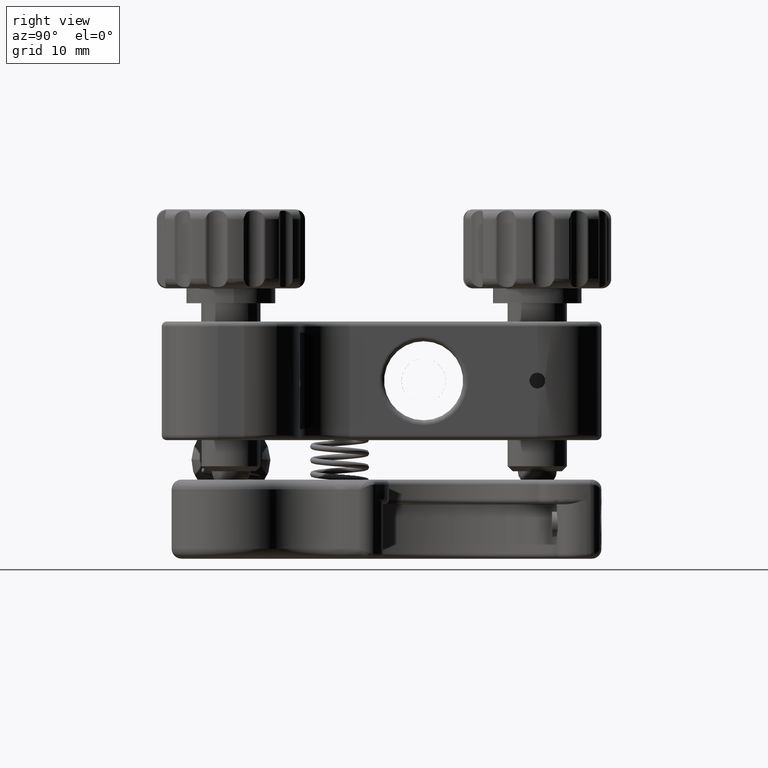
[diagram: clean part render]
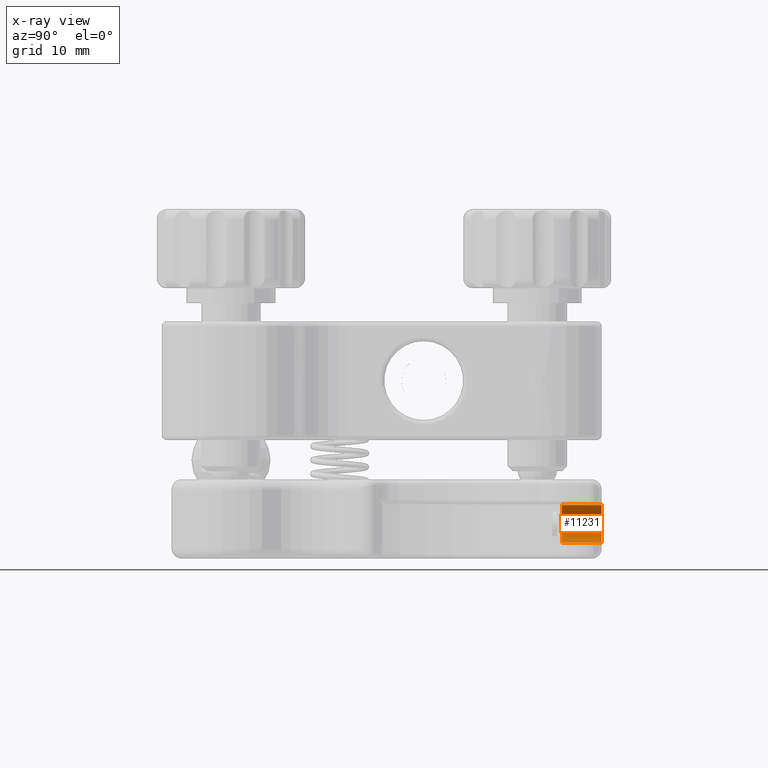
[diagram: x-ray — body ghosted, one internal face saturated and labeled with its STEP entity id]
A machine part, right view, then the same camera in x-ray: the body is ghosted and one INTERNAL B-rep face — a face not visible from any outside direction — is saturated and labeled: STEP entity #11231.
In plain terms, the highlighted cylindrical surface (edge-blend (fillet) strip) has radius 2 mm, axis along (0, 1, -0).
Its self-contained STEP definition (entity closure, byte-faithful):
#499 = DIRECTION ( 'NONE',  ( 0.3471788439923014780, 0.000000000000000000, 0.9377989391570931144 ) ) ;
#1185 = CARTESIAN_POINT ( 'NONE',  ( -35.08220024130405790, 33.49999999999997158, -14.49999999999997513 ) ) ;
#1458 = DIRECTION ( 'NONE',  ( -0.3471788439923018110, 0.000000000000000000, -0.9377989391570930033 ) ) ;
#1733 = VECTOR ( 'NONE', #16437, 1000.000000000000000 ) ;
#1754 = CARTESIAN_POINT ( 'NONE',  ( -35.77655792928866418, 33.49999999999997158, -16.37559787831417069 ) ) ;
#2230 = FACE_OUTER_BOUND ( 'NONE', #12925, .T. ) ;
#2425 = ORIENTED_EDGE ( 'NONE', *, *, #17004, .F. ) ;
#2704 = EDGE_CURVE ( 'NONE', #5647, #15872, #2869, .T. ) ;
#2869 = LINE ( 'NONE', #22417, #8589 ) ;
#3988 = CIRCLE ( 'NONE', #8797, 2.000000000000007994 ) ;
#5647 = VERTEX_POINT ( 'NONE', #12593 ) ;
#6712 = AXIS2_PLACEMENT_3D ( 'NONE', #9242, #7733, #499 ) ;
#7620 = CARTESIAN_POINT ( 'NONE',  ( -35.77655792928866418, 33.49999999999997158, -16.37559787831416358 ) ) ;
#7733 = DIRECTION ( 'NONE',  ( 5.541093690762851572E-16, 1.000000000000000000, -2.894668895705650930E-16 ) ) ;
#8536 = ORIENTED_EDGE ( 'NONE', *, *, #9298, .T. ) ;
#8589 = VECTOR ( 'NONE', #13493, 1000.000000000000000 ) ;
#8797 = AXIS2_PLACEMENT_3D ( 'NONE', #17163, #18889, #1458 ) ;
#9242 = CARTESIAN_POINT ( 'NONE',  ( -35.08220024130405790, 33.49999999999997158, -14.49999999999997513 ) ) ;
#9298 = EDGE_CURVE ( 'NONE', #15872, #15876, #3988, .T. ) ;
#10196 = AXIS2_PLACEMENT_3D ( 'NONE', #1185, #20610, #18869 ) ;
#11231 = ADVANCED_FACE ( 'NONE', ( #2230 ), #21633, .T. ) ;
#11260 = ORIENTED_EDGE ( 'NONE', *, *, #14110, .F. ) ;
#12593 = CARTESIAN_POINT ( 'NONE',  ( -34.38784255331945161, 33.49999999999997158, -12.62440212168578668 ) ) ;
#12854 = CARTESIAN_POINT ( 'NONE',  ( -35.77655792928866418, 37.49999999999997868, -16.37559787831417779 ) ) ;
#12925 = EDGE_LOOP ( 'NONE', ( #11260, #2425, #18628, #8536 ) ) ;
#13493 = DIRECTION ( 'NONE',  ( 5.541093690762851572E-16, 1.000000000000000000, -2.894668895705650930E-16 ) ) ;
#14110 = EDGE_CURVE ( 'NONE', #19231, #15876, #21138, .T. ) ;
#15872 = VERTEX_POINT ( 'NONE', #21566 ) ;
#15876 = VERTEX_POINT ( 'NONE', #12854 ) ;
#16437 = DIRECTION ( 'NONE',  ( 5.541093690762851572E-16, 1.000000000000000000, -2.894668895705650930E-16 ) ) ;
#17004 = EDGE_CURVE ( 'NONE', #5647, #19231, #21192, .T. ) ;
#17163 = CARTESIAN_POINT ( 'NONE',  ( -35.08220024130405790, 37.49999999999997868, -14.49999999999999112 ) ) ;
#18628 = ORIENTED_EDGE ( 'NONE', *, *, #2704, .T. ) ;
#18869 = DIRECTION ( 'NONE',  ( -0.3471788439923014780, 0.000000000000000000, -0.9377989391570931144 ) ) ;
#18889 = DIRECTION ( 'NONE',  ( -5.541093690762851572E-16, -1.000000000000000000, 2.894668895705650930E-16 ) ) ;
#19231 = VERTEX_POINT ( 'NONE', #7620 ) ;
#20610 = DIRECTION ( 'NONE',  ( -5.541093690762851572E-16, -1.000000000000000000, 2.894668895705650930E-16 ) ) ;
#21138 = LINE ( 'NONE', #1754, #1733 ) ;
#21192 = CIRCLE ( 'NONE', #10196, 2.000000000000009770 ) ;
#21566 = CARTESIAN_POINT ( 'NONE',  ( -34.38784255331945872, 37.49999999999997868, -12.62440212168580089 ) ) ;
#21633 = CYLINDRICAL_SURFACE ( 'NONE', #6712, 2.000000000000009770 ) ;
#22417 = CARTESIAN_POINT ( 'NONE',  ( -34.38784255331945161, 33.49999999999997158, -12.62440212168577958 ) ) ;